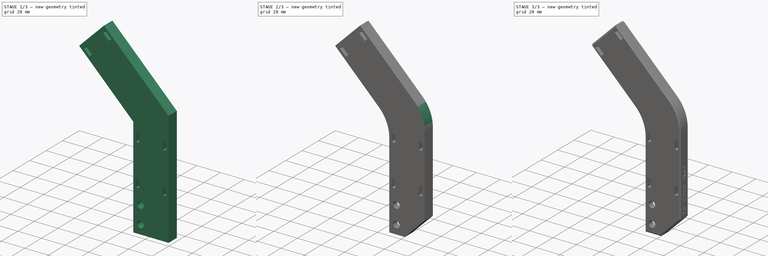
[diagram: build sequence overview — one tinted view per stage of 3, left to right]
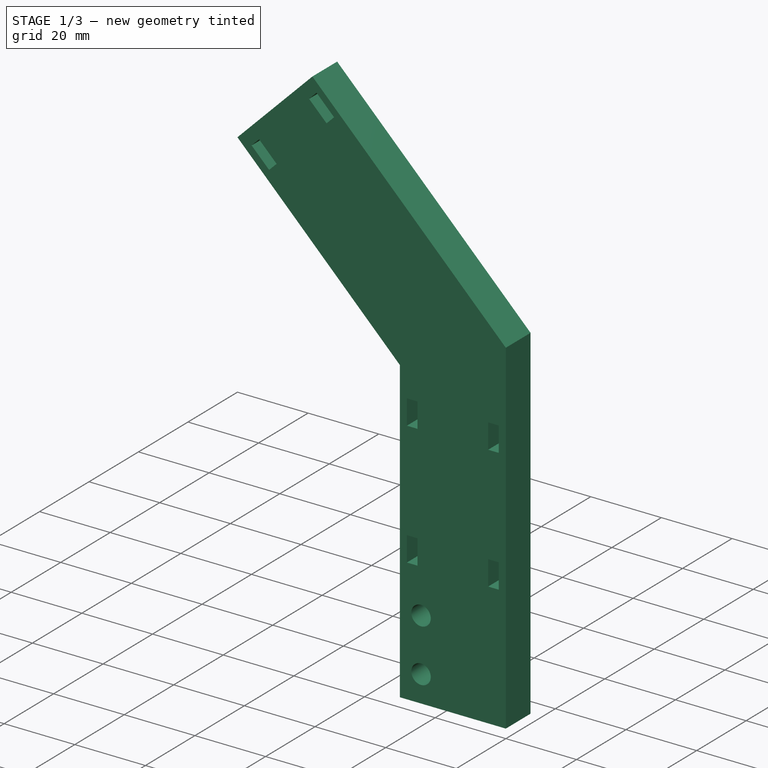
[diagram: stage 1 of 3 — iso view after this stage's code; geometry added in this stage tinted green]
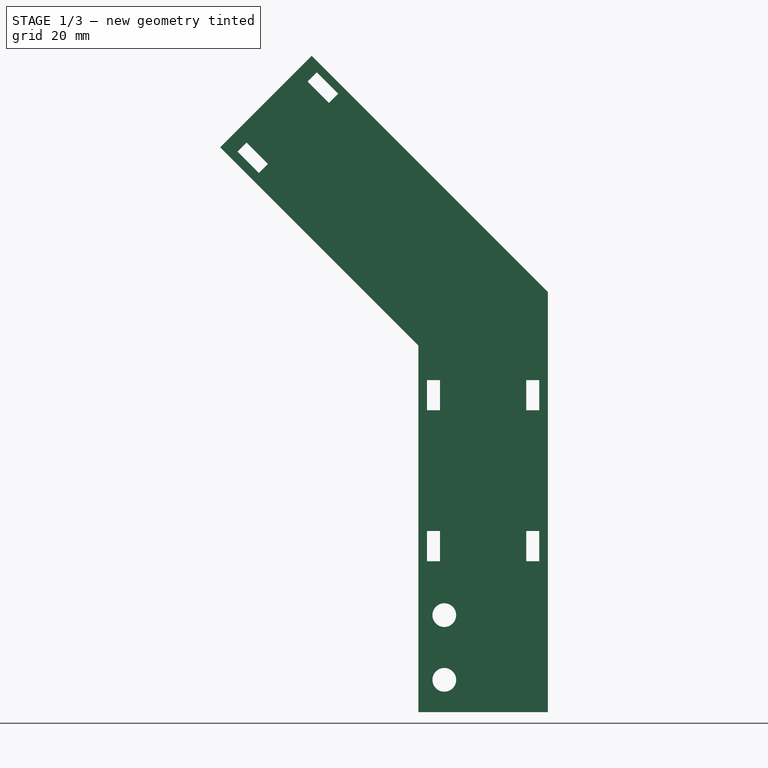
[diagram: stage 1 of 3 — front view after this stage's code; geometry added in this stage tinted green]
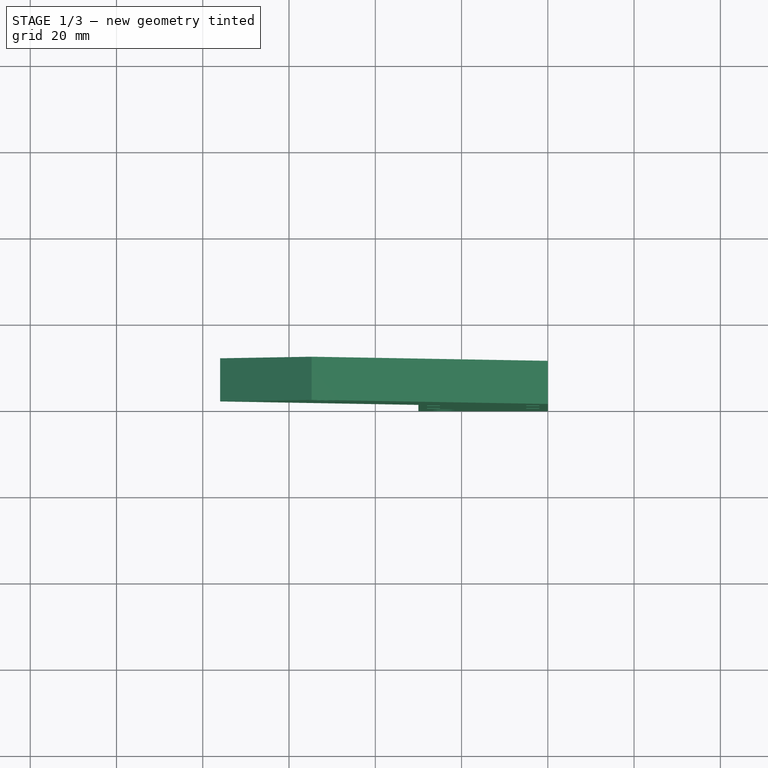
[diagram: stage 1 of 3 — top view after this stage's code; geometry added in this stage tinted green]
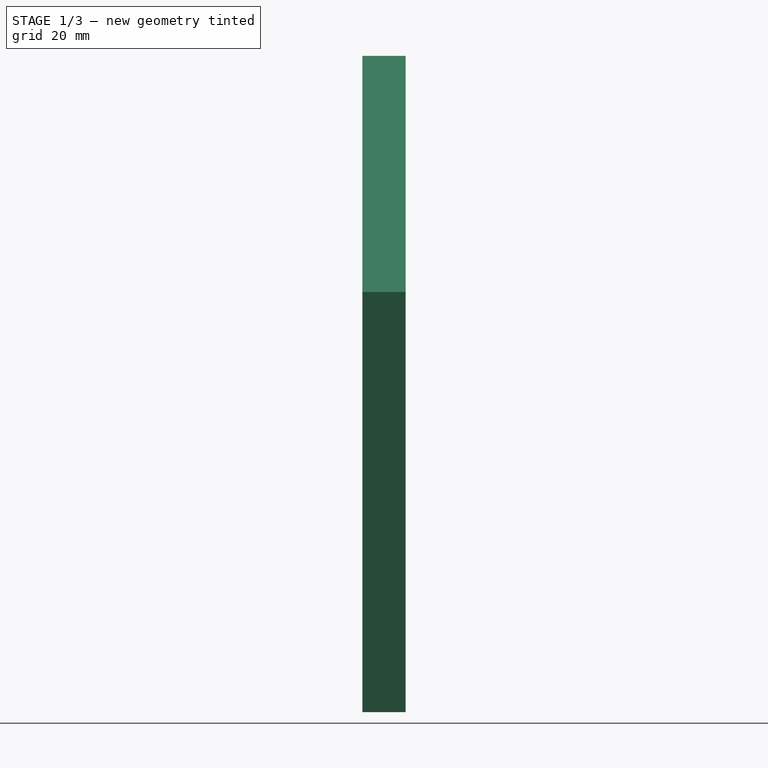
[diagram: stage 1 of 3 — right view after this stage's code; geometry added in this stage tinted green]
FCSTD DOCUMENT  (FreeCAD 0.19R24291 (Git))
Label: FDM-0010_y-gantry-umbilical-mount
License: All rights reserved
LicenseURL: http://en.wikipedia.org/wiki/All_rights_reserved
objects: Sketcher::SketchObject×3, PartDesign::Plane×3, PartDesign::Pocket×3, PartDesign::Chamfer×2, PartDesign::Pad×1, PartDesign::Fillet×1, Part::Part2DObjectPython×1, PartDesign::Body×1
note: 22 computed .brp shape members not serialized (recipe doc carries the construction recipe); baked Part::Feature solids carry a one-line shape summary decoded from their .brp

FEATURE [Sketcher::SketchObject] Sketch003
  FullyConstrained = true
  MapMode = 5
  Placement = pos=(0,0,0) rot=(1,0,0;1.5708rad)
  Support = -> [XZ_Plane]
  sketch-geometry (6):
    g0: LineSegment StartX=0 StartY=97.4264 StartZ=0 EndX=0 EndY=0 EndZ=0
    g1: LineSegment StartX=0 StartY=0 StartZ=0 EndX=-30 EndY=0 EndZ=0
    g2: LineSegment StartX=-30 StartY=0 StartZ=0 EndX=-30 EndY=85 EndZ=0
    g3: LineSegment StartX=0 StartY=97.4264 StartZ=0 EndX=-54.7487 EndY=152.175 EndZ=0
    g4: LineSegment StartX=-54.7487 StartY=152.175 StartZ=0 EndX=-75.9619 EndY=130.962 EndZ=0
    g5: LineSegment StartX=-75.9619 StartY=130.962 StartZ=0 EndX=-30 EndY=85 EndZ=0
  constraints (17):
    c: PointOnObject(g0,g-2)
    c: Coincident(g0,g-1)
    c: Coincident(g0,g1)
    c: PointOnObject(g1,g-1)
    c: Coincident(g1,g2)
    c: Vertical(g2)
    c: Coincident(g3,g4)
    c: Coincident(g4,g5)
    c: Coincident(g5,g2)
    c: Coincident(g3,g0)
    c: DistanceX(g1,g1) = 30
    c: DistanceY(g2,g2) = 85
    c: Parallel(g5,g3)
    c: Perpendicular(g5,g4)
    c: Distance(g4) = 30
    c: Angle(g5,g2) = 2.35619
    c: Distance(g5) = 65
FEATURE [PartDesign::Pad] Pad001
  Direction = (1,1,1)
  Length = 10
  Length2 = 100
  Placement = pos=(0,0,0) rot=(1,0,0;1.5708rad)
  Profile = -> Sketch003
  Reversed = true
  Type = 0
FEATURE [PartDesign::Plane] DatumPlane
  AttachmentOffset = pos=(0,0,0) rot=(0,1,0;3.14159rad)
  Length = 126.857
  MapMode = 5
  Placement = pos=(0,10,2.2e-15) rot=(0,0.707107,-0.707107;3.14159rad)
  ResizeMode = 0
  Support = -> [Pad001]
  Width = 203.07
FEATURE [Sketcher::SketchObject] Sketch001
  AttachmentOffset = pos=(0,0,0) rot=(1,0,0;3.14159rad)
  FullyConstrained = true
  MapMode = 5
  Placement = pos=(0,10,2.2e-15) rot=(0,-0.707107,-0.707107;3.14159rad)
  Support = -> [DatumPlane]
  sketch-geometry (32):
    g0: Circle CenterX=24 CenterY=7.5 CenterZ=0 NormalX=0 NormalY=0 NormalZ=1 AngleXU=0 Radius=2.75
    g1: Circle CenterX=24 CenterY=22.5 CenterZ=0 NormalX=0 NormalY=0 NormalZ=1 AngleXU=0 Radius=2.75
    g2: LineSegment StartX=24 StartY=22.5 StartZ=0 EndX=24 EndY=7.5 EndZ=0
    g3: LineSegment StartX=30 StartY=0 StartZ=0 EndX=16.5 EndY=0 EndZ=0
    g4: LineSegment StartX=16.5 StartY=0 StartZ=0 EndX=16.5 EndY=30 EndZ=0
    g5: LineSegment StartX=16.5 StartY=30 StartZ=0 EndX=30 EndY=30 EndZ=0
    g6: LineSegment StartX=30 StartY=30 StartZ=0 EndX=30 EndY=0 EndZ=0
    g7: LineSegment StartX=2 StartY=42 StartZ=0 EndX=5 EndY=42 EndZ=0
    g8: LineSegment StartX=5 StartY=42 StartZ=0 EndX=5 EndY=35 EndZ=0
    g9: LineSegment StartX=5 StartY=35 StartZ=0 EndX=2 EndY=35 EndZ=0
    g10: LineSegment StartX=2 StartY=35 StartZ=0 EndX=2 EndY=42 EndZ=0
    g11: LineSegment StartX=2 StartY=77 StartZ=0 EndX=5 EndY=77 EndZ=0
    g12: LineSegment StartX=5 StartY=77 StartZ=0 EndX=5 EndY=70 EndZ=0
    g13: LineSegment StartX=5 StartY=70 StartZ=0 EndX=2 EndY=70 EndZ=0
    g14: LineSegment StartX=2 StartY=70 StartZ=0 EndX=2 EndY=77 EndZ=0
    g15: LineSegment StartX=25 StartY=77 StartZ=0 EndX=28 EndY=77 EndZ=0
    g16: LineSegment StartX=28 StartY=77 StartZ=0 EndX=28 EndY=70 EndZ=0
    g17: LineSegment StartX=28 StartY=70 StartZ=0 EndX=25 EndY=70 EndZ=0
    g18: LineSegment StartX=25 StartY=70 StartZ=0 EndX=25 EndY=77 EndZ=0
    g19: LineSegment StartX=25 StartY=42 StartZ=0 EndX=28 EndY=42 EndZ=0
    g20: LineSegment StartX=28 StartY=42 StartZ=0 EndX=28 EndY=35 EndZ=0
    g21: LineSegment StartX=28 StartY=35 StartZ=0 EndX=25 EndY=35 EndZ=0
    g22: LineSegment StartX=25 StartY=35 StartZ=0 EndX=25 EndY=42 EndZ=0
    g23: LineSegment StartX=64.8787 StartY=127.121 StartZ=0 EndX=69.8284 EndY=132.071 EndZ=0
    g24: LineSegment StartX=69.8284 StartY=132.071 StartZ=0 EndX=71.9497 EndY=129.95 EndZ=0
    g25: LineSegment StartX=71.9497 StartY=129.95 StartZ=0 EndX=67 EndY=125 EndZ=0
    g26: LineSegment StartX=67 StartY=125 StartZ=0 EndX=64.8787 EndY=127.121 EndZ=0
    g27: LineSegment StartX=48.6152 StartY=143.385 StartZ=0 EndX=50.7365 EndY=141.263 EndZ=0
    g28: LineSegment StartX=50.7365 StartY=141.263 StartZ=0 EndX=55.6863 EndY=146.213 EndZ=0
    g29: LineSegment StartX=55.6863 StartY=146.213 StartZ=0 EndX=53.565 EndY=148.335 EndZ=0
    g30: LineSegment StartX=53.565 StartY=148.335 StartZ=0 EndX=48.6152 EndY=143.385 EndZ=0
    g31: LineSegment StartX=50.7365 StartY=141.263 StartZ=0 EndX=64.8787 EndY=127.121 EndZ=0
  constraints (94):
    c: Diameter(g1) = 5.5
    c: Diameter(g0) = 5.5
    c: Coincident(g2,g1)
    c: Coincident(g2,g0)
    c: Vertical(g2)
    c: Coincident(g3,g4)
    c: Coincident(g4,g5)
    c: Coincident(g5,g6)
    c: Coincident(g6,g3)
    c: Horizontal(g3)
    c: Horizontal(g5)
    c: Vertical(g4)
    c: Vertical(g6)
    c: PointOnObject(g3,g-1)
    c: DistanceX(g4,g1) = 7.5
    c: Distance(g1,g5) = 7.5
    c: Distance(g0,g3) = 7.5
    c: DistanceY(g4,g4) = 30
    c: DistanceX(g5,g5) = 13.5
    c: DistanceX(g-1,g3) = 30
    c: Coincident(g7,g8)
    c: Coincident(g8,g9)
    c: Coincident(g9,g10)
    c: Coincident(g10,g7)
    c: Horizontal(g7)
    c: Horizontal(g9)
    c: Vertical(g8)
    c: Vertical(g10)
    c: Coincident(g11,g12)
    c: Coincident(g12,g13)
    c: Coincident(g13,g14)
    c: Coincident(g14,g11)
    c: Horizontal(g11)
    c: Horizontal(g13)
    c: Vertical(g12)
    c: Vertical(g14)
    c: Coincident(g15,g16)
    c: Coincident(g16,g17)
    c: Coincident(g17,g18)
    c: Coincident(g18,g15)
    c: Horizontal(g15)
    c: Horizontal(g17)
    c: Vertical(g16)
    c: Vertical(g18)
    c: Coincident(g19,g20)
    c: Coincident(g20,g21)
    c: Coincident(g21,g22)
    c: Coincident(g22,g19)
    c: Horizontal(g19)
    c: Horizontal(g21)
    c: Vertical(g20)
    c: Vertical(g22)
    c: PointOnObject(g21,g9)
    c: PointOnObject(g19,g7)
    c: PointOnObject(g17,g13)
    c: PointOnObject(g15,g11)
    c: PointOnObject(g13,g10)
    c: PointOnObject(g12,g8)
    c: PointOnObject(g17,g22)
    c: PointOnObject(g16,g20)
    c: DistanceX(g-1,g9) = 2
    c: DistanceX(g-1,g8) = 5
    c: DistanceX(g-1,g21) = 25
    c: DistanceX(g-1,g20) = 28
    c: DistanceY(g-1,g9) = 35
    c: DistanceY(g-1,g7) = 42
    c: DistanceY(g-1,g13) = 70
    c: DistanceY(g13,g11) = 7
    c: Coincident(g23,g24)
    c: Coincident(g24,g25)
    c: Coincident(g25,g26)
    c: Coincident(g26,g23)
    c: Coincident(g27,g28)
    c: Coincident(g28,g29)
    c: Coincident(g29,g30)
    c: Coincident(g30,g27)
    c: Distance(g26) = 3
    c: Distance(g25) = 7
    c: Parallel(g23,g25)
    c: Parallel(g26,g24)
    c: Perpendicular(g25,g26)
    c: Equal(g26,g27)
    c: Equal(g25,g28)
    c: Equal(g23,g30)
    c: Equal(g24,g29)
    c: Perpendicular(g27,g30)
    c: Parallel(g28,g23)
    c: Angle(g-1,g25) = 0.785398
    c: PointOnObject(g27,g26)
    c: DistanceY(g-1,g25) = 125
    c: Coincident(g31,g27)
    c: Coincident(g31,g23)
    c: Distance(g31) = 20
    c: DistanceX(g-1,g25) = 67
FEATURE [PartDesign::Pocket] Pocket
  AllowMultiFace = false
  BaseFeature = -> Pad001
  Length = 10
  Length2 = 100
  Placement = pos=(0,0,0) rot=(1,0,0;1.5708rad)
  Profile = -> Sketch001
  Refine = true
  Type = 0
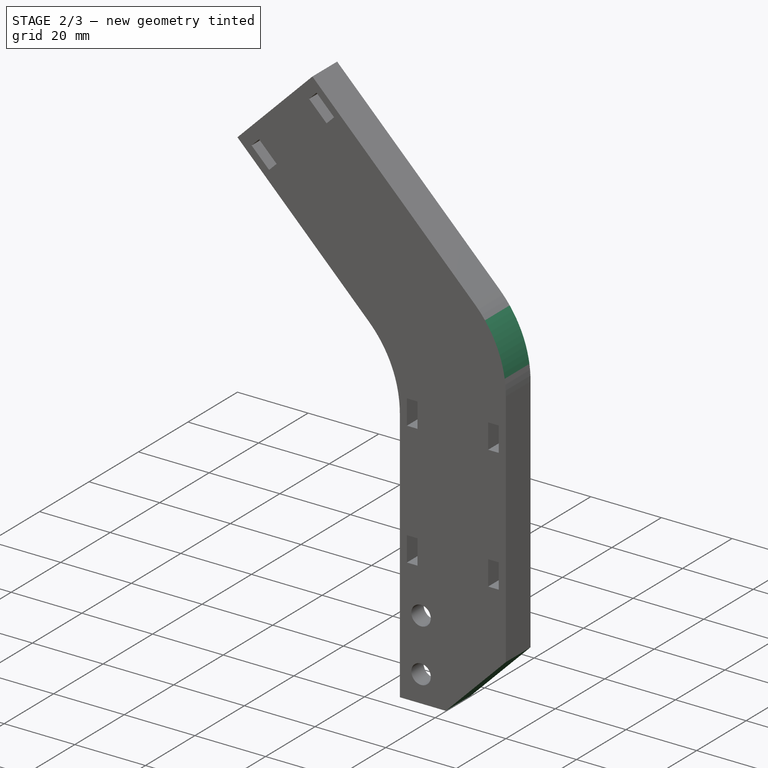
[diagram: stage 2 of 3 — iso view after this stage's code; geometry added in this stage tinted green]
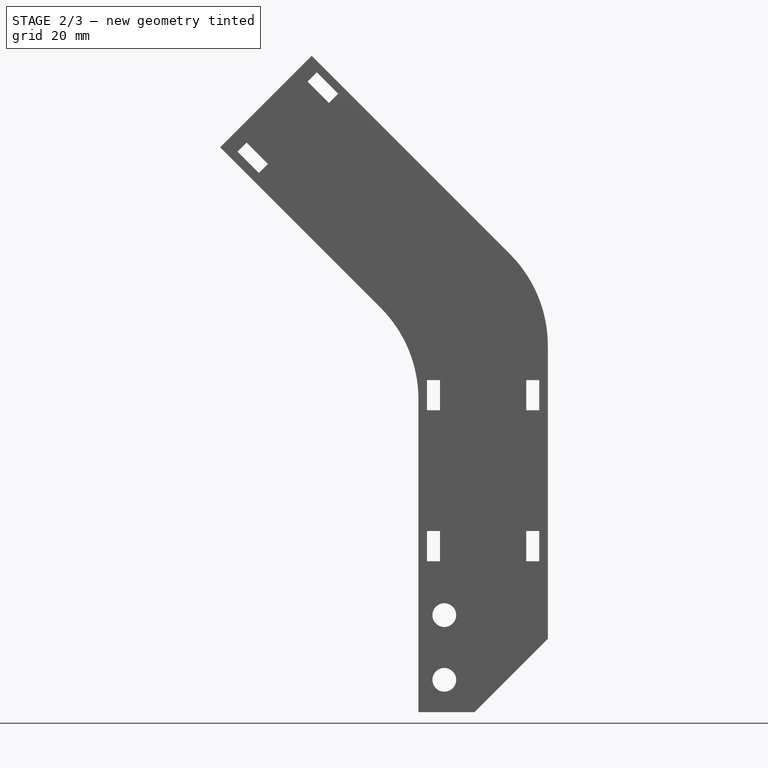
[diagram: stage 2 of 3 — front view after this stage's code; geometry added in this stage tinted green]
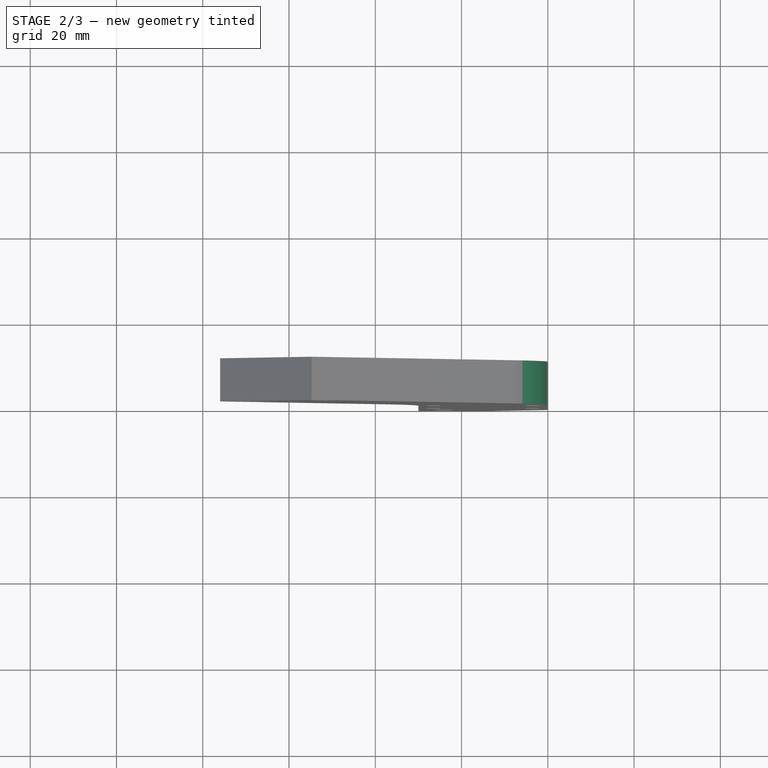
[diagram: stage 2 of 3 — top view after this stage's code; geometry added in this stage tinted green]
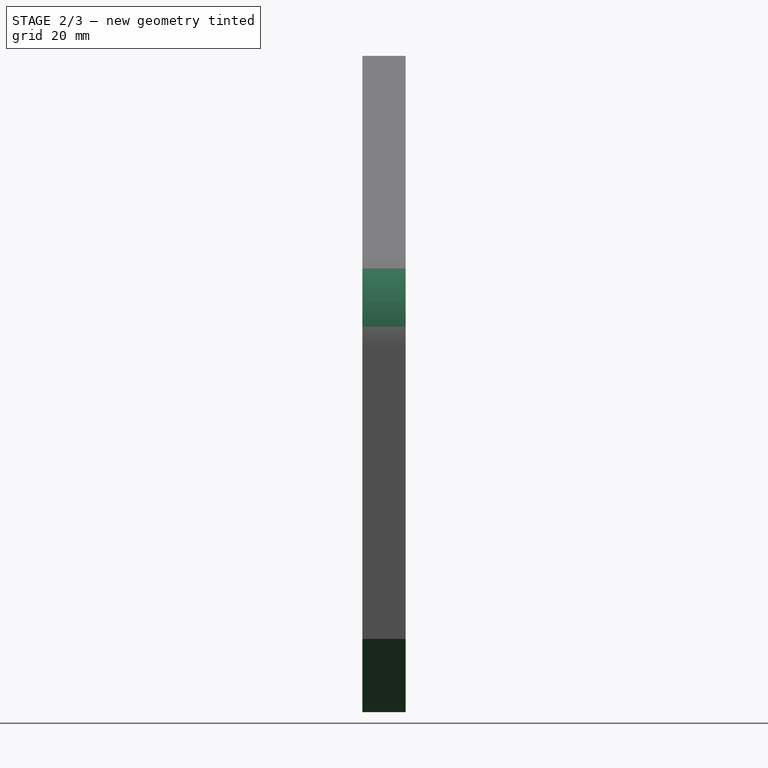
[diagram: stage 2 of 3 — right view after this stage's code; geometry added in this stage tinted green]
FEATURE [Sketcher::SketchObject] Sketch002
  AttachmentOffset = pos=(0,0,0) rot=(1,0,0;3.14159rad)
  ExternalGeometry = -> [Pocket]
  FullyConstrained = true
  MapMode = 5
  Placement = pos=(0,10,2.2e-15) rot=(0,-0.707107,-0.707107;3.14159rad)
  Support = -> [DatumPlane]
  sketch-geometry (8):
    g0: ArcOfCircle CenterX=24 CenterY=22.5 CenterZ=0 NormalX=0 NormalY=0 NormalZ=1 AngleXU=0 Radius=6 StartAngle=1.5708 EndAngle=4.71239
    g1: ArcOfCircle CenterX=24 CenterY=7.5 CenterZ=0 NormalX=0 NormalY=0 NormalZ=1 AngleXU=0 Radius=6 StartAngle=1.5708 EndAngle=4.71239
    g2: LineSegment StartX=24 StartY=28.5 StartZ=0 EndX=32 EndY=28.5 EndZ=0
    g3: LineSegment StartX=32 StartY=28.5 StartZ=0 EndX=32 EndY=16.5 EndZ=0
    g4: LineSegment StartX=32 StartY=16.5 StartZ=0 EndX=24 EndY=16.5 EndZ=0
    g5: LineSegment StartX=24 StartY=13.5 StartZ=0 EndX=32 EndY=13.5 EndZ=0
    g6: LineSegment StartX=32 StartY=13.5 StartZ=0 EndX=32 EndY=1.5 EndZ=0
    g7: LineSegment StartX=32 StartY=1.5 StartZ=0 EndX=24 EndY=1.5 EndZ=0
  constraints (26):
    c: Diameter(g0) = 12
    c: Diameter(g1) = 12
    c: Horizontal(g2)
    c: Coincident(g2,g3)
    c: Coincident(g3,g4)
    c: Horizontal(g4)
    c: Horizontal(g5)
    c: Coincident(g5,g6)
    c: Vertical(g6)
    c: Coincident(g6,g7)
    c: Coincident(g0,g2)
    c: Coincident(g0,g4)
    c: Coincident(g1,g5)
    c: Coincident(g1,g7)
    c: Tangent(g2,g0)
    c: Tangent(g4,g0)
    c: Tangent(g5,g1)
    c: Tangent(g7,g1)
    c: Vertical(g3)
    c: PointOnObject(g3,g6)
    c: Horizontal(g7)
    c: Distance(g6,g-2) = 32
    c: DistanceX(g-1,g1) = 24
    c: DistanceX(g-1,g0) = 24
    c: DistanceY(g-1,g1) = 7.5
    c: DistanceY(g-1,g0) = 22.5
FEATURE [PartDesign::Fillet] Fillet
  Base = -> Pocket [Edge1,Edge70]
  BaseFeature = -> Pocket
  Placement = pos=(0,0,0) rot=(1,0,0;1.5708rad)
  Radius = 30
  SupportTransform = false
FEATURE [PartDesign::Pocket] Pocket001
  AllowMultiFace = false
  BaseFeature = -> Fillet
  Length = 5
  Length2 = 100
  Placement = pos=(0,0,0) rot=(1,0,0;1.5708rad)
  Profile = -> Sketch002
  Refine = true
  Type = 0
FEATURE [PartDesign::Chamfer] Chamfer
  Angle = 45
  Base = -> Pocket001 [Edge3]
  BaseFeature = -> Pocket001
  ChamferType = 0
  FlipDirection = false
  Placement = pos=(0,0,0) rot=(1,0,0;1.5708rad)
  Size = 17
  Size2 = 1
  SupportTransform = false
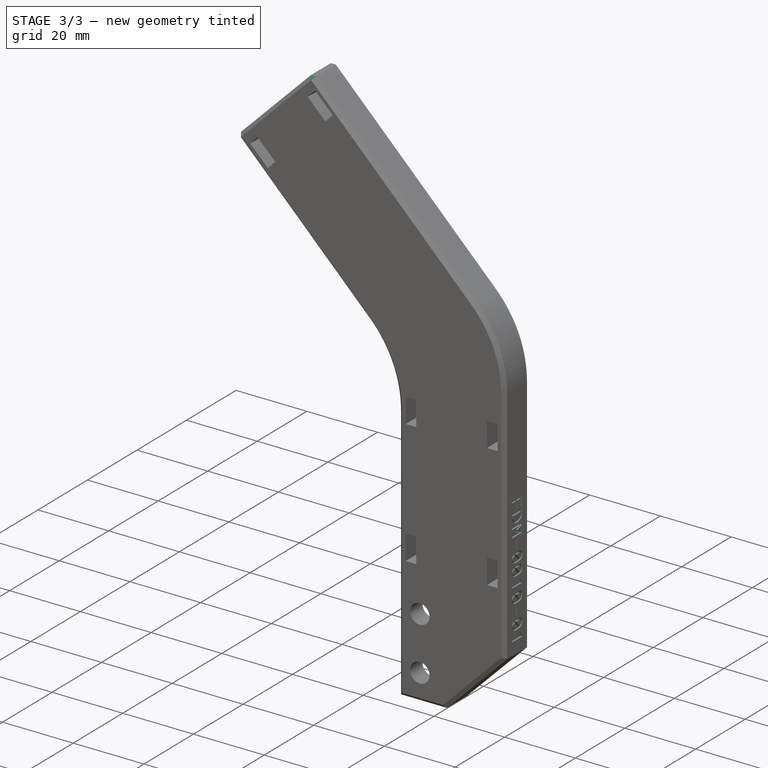
[diagram: stage 3 of 3 — iso view after this stage's code; geometry added in this stage tinted green]
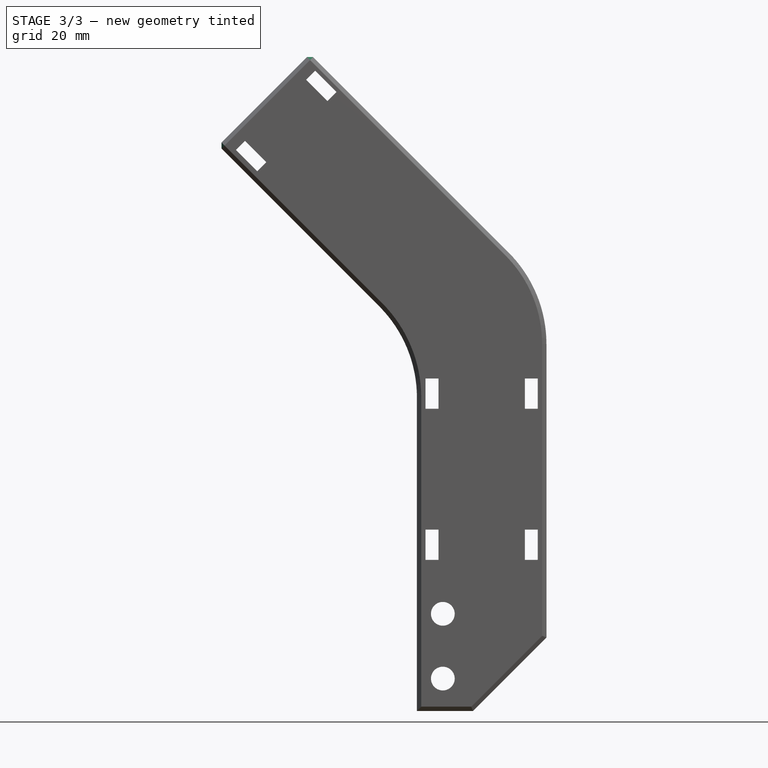
[diagram: stage 3 of 3 — front view after this stage's code; geometry added in this stage tinted green]
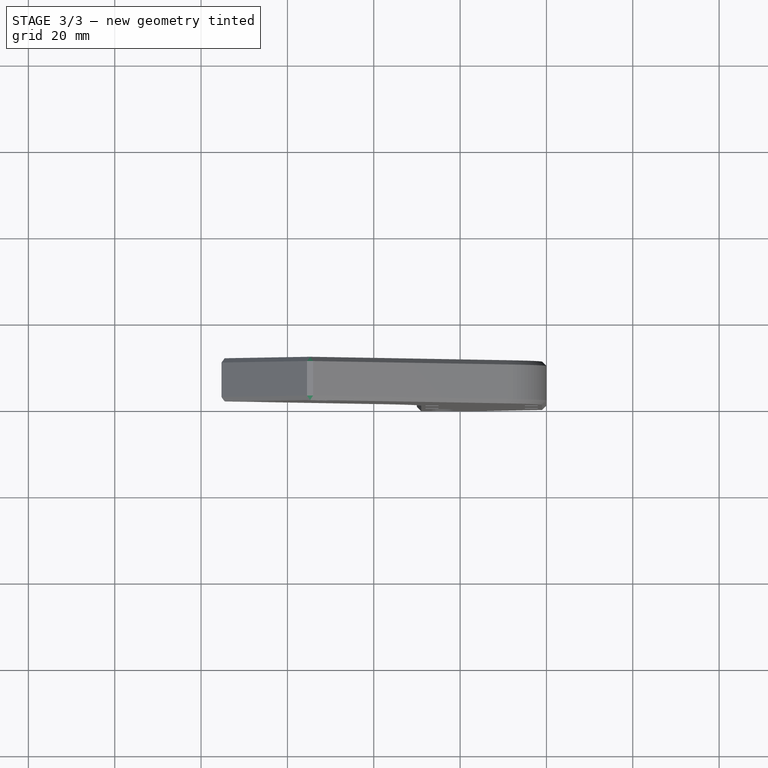
[diagram: stage 3 of 3 — top view after this stage's code; geometry added in this stage tinted green]
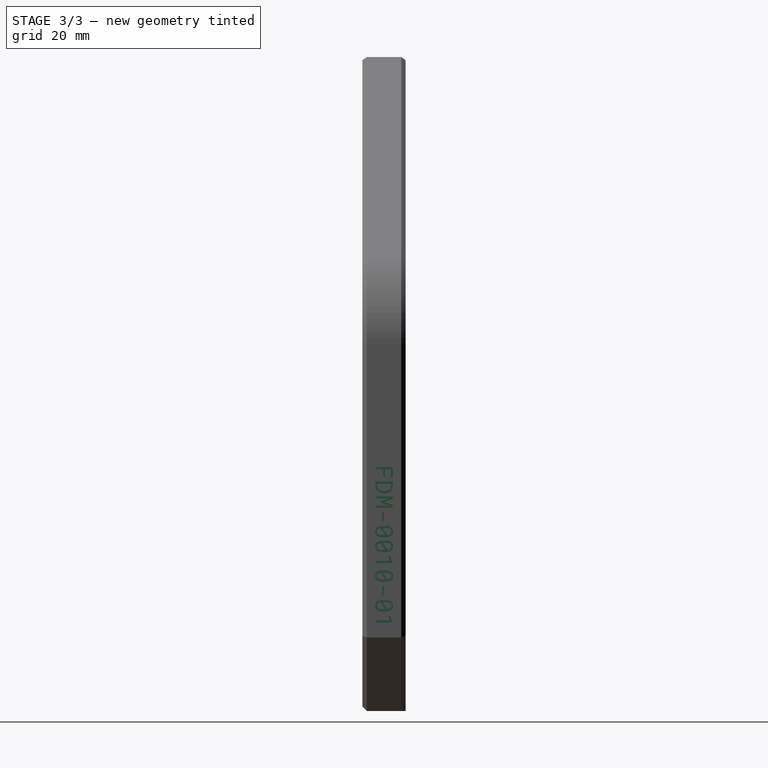
[diagram: stage 3 of 3 — right view after this stage's code; geometry added in this stage tinted green]
FEATURE [PartDesign::Chamfer] Chamfer001
  Angle = 45
  Base = -> Chamfer [Edge47,Edge42,Edge4,Edge41,Edge10,Edge12,Edge8,Edge5,Edge7,Edge49,Edge82,Edge90,Edge51,Edge50,Edge44,Edge40]
  BaseFeature = -> Chamfer
  ChamferType = 0
  FlipDirection = false
  Placement = pos=(0,0,0) rot=(1,0,0;1.5708rad)
  Size = 1
  Size2 = 1
  SupportTransform = false
FEATURE [PartDesign::Plane] DatumPlane001
  Length = 195.255
  MapMode = 5
  Placement = pos=(0,0,0) rot=(0.707107,0,0.707107;3.14159rad)
  ResizeMode = 0
  Support = -> [Chamfer001]
  Width = 68.7866
FEATURE [Part::Part2DObjectPython] ShapeString  label="PN"  # Draft 2D object (typed FeaturePython)
  AttachmentOffset = pos=(57,-3,0) rot=(0,0,-1;3.14159rad)
  FontFile = ../../lib/fonts/RobotoMono-VariableFont_weight.ttf
  MapMode = 5
  Placement = pos=(1.27e-14,3,57) rot=(0,1,0;1.5708rad)
  Size = 5
  String = FDM-0010-01
  Support = -> [DatumPlane001]
  Tracking = 0
  Visibility1 = false
FEATURE [PartDesign::Pocket] Pocket002
  AllowMultiFace = false
  BaseFeature = -> Chamfer001
  Length = 0.5
  Length2 = 100
  Placement = pos=(0,0,0) rot=(1,0,0;1.5708rad)
  Profile = -> ShapeString
  Type = 0
FEATURE [PartDesign::Plane] DatumPlane002  label="PrintPlane"
  Length = 126.857
  MapMode = 5
  Placement = pos=(0,0,0) rot=(1,0,0;1.5708rad)
  ResizeMode = 0
  Support = -> [Pocket002]
  Width = 203.07
FEATURE [PartDesign::Body] Body
  Group = -> [DatumPlane,Sketch001,Sketch003,Pad001,Pocket,Sketch002,Fillet,Pocket001,Chamfer,Chamfer001,DatumPlane001,ShapeString,Pocket002,DatumPlane002]
  Origin = -> Origin
  Tip = -> Pocket002
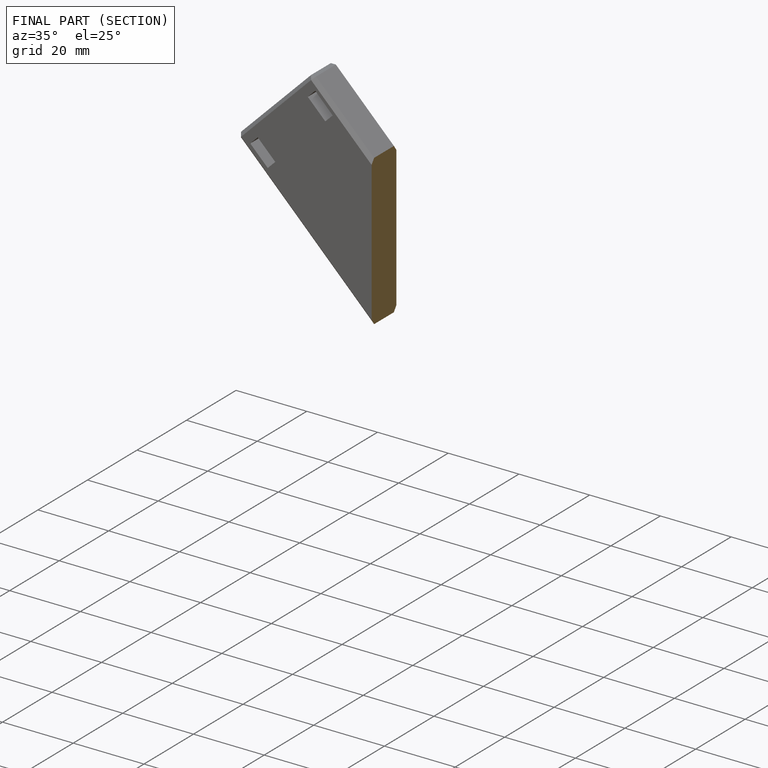
[diagram: finished part — half-section view (interior)]
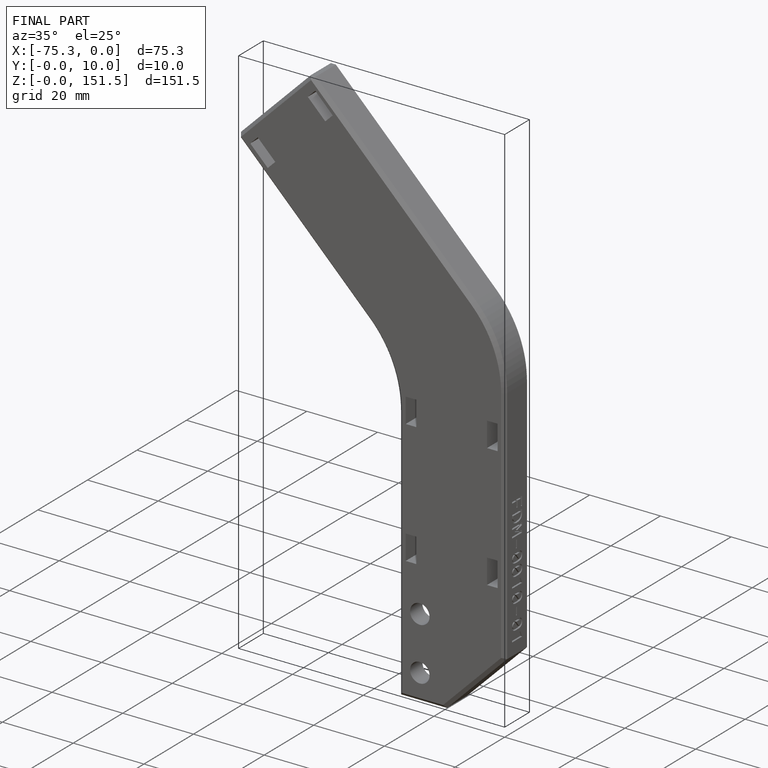
[diagram: finished part — iso view with bounding-box wireframe]
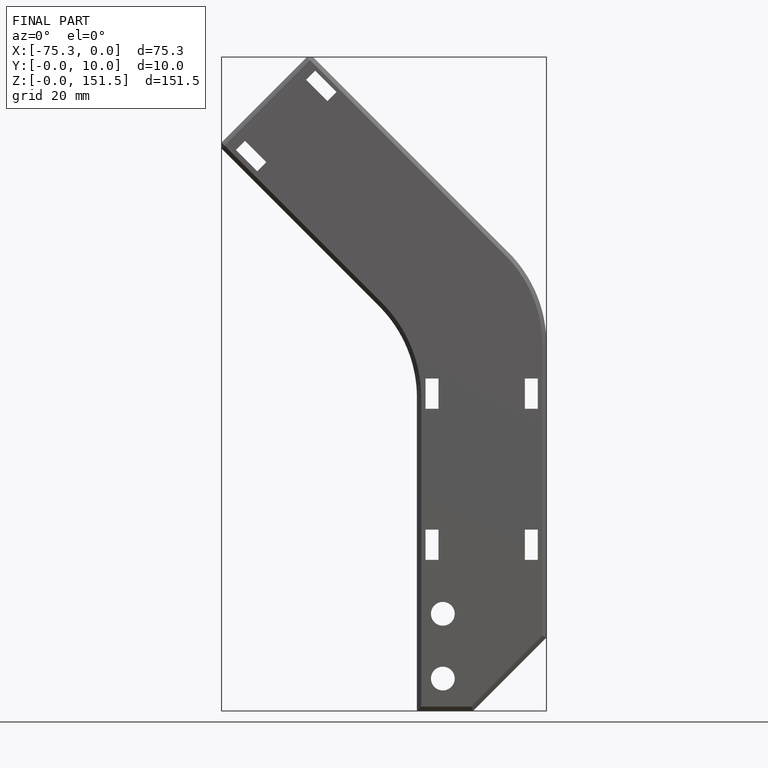
[diagram: finished part — front view with bounding-box wireframe]
